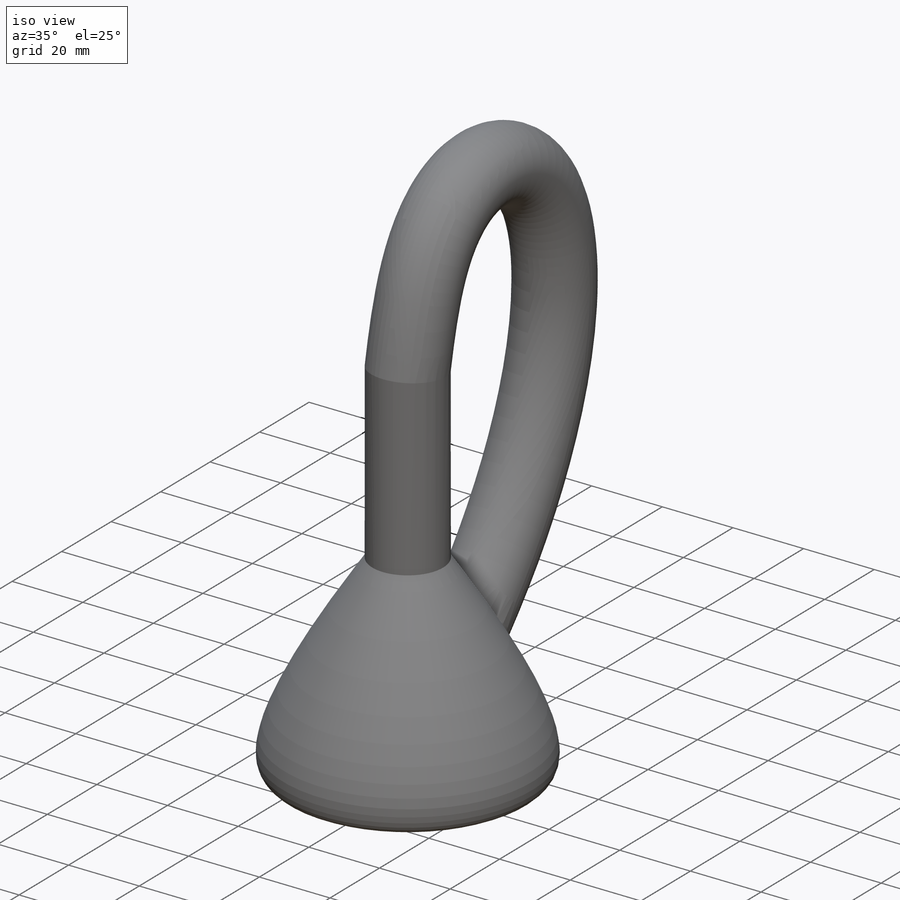
[diagram: iso view]
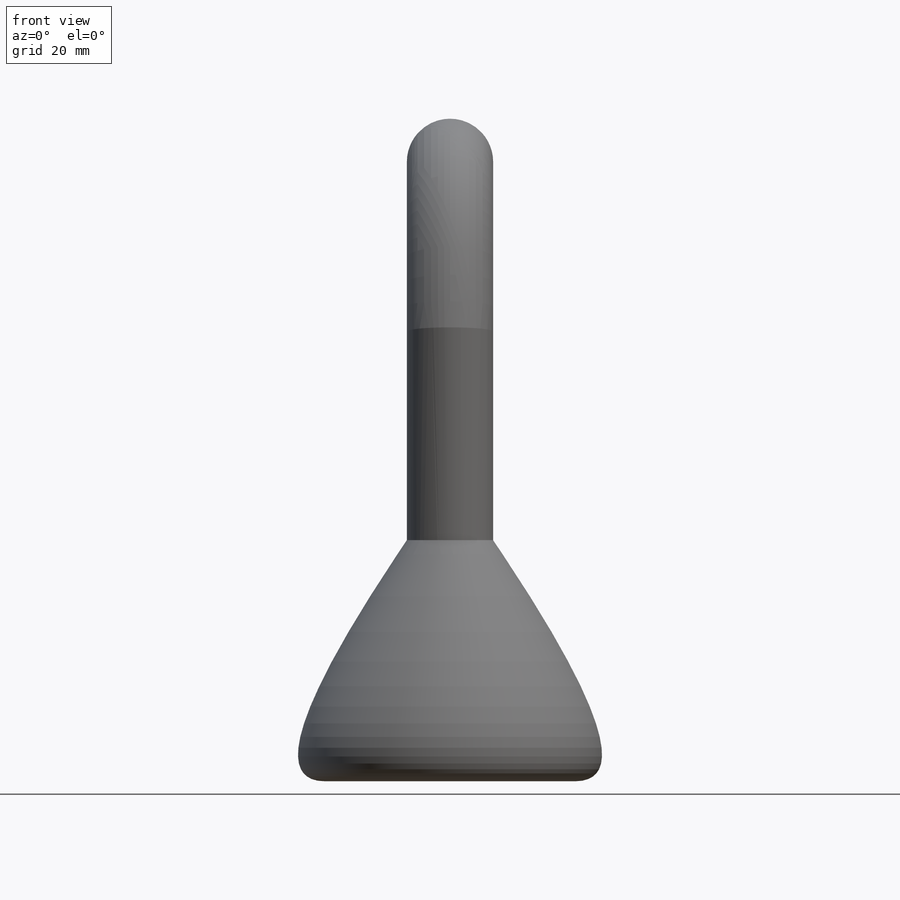
[diagram: front view]
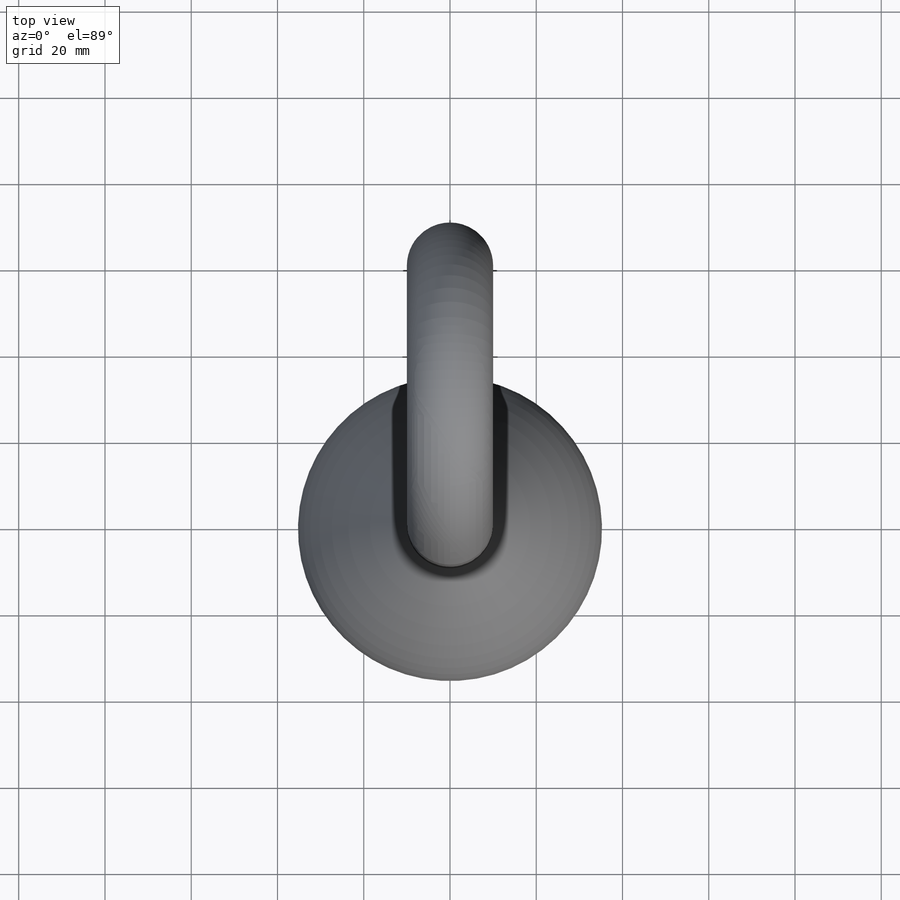
[diagram: top view]
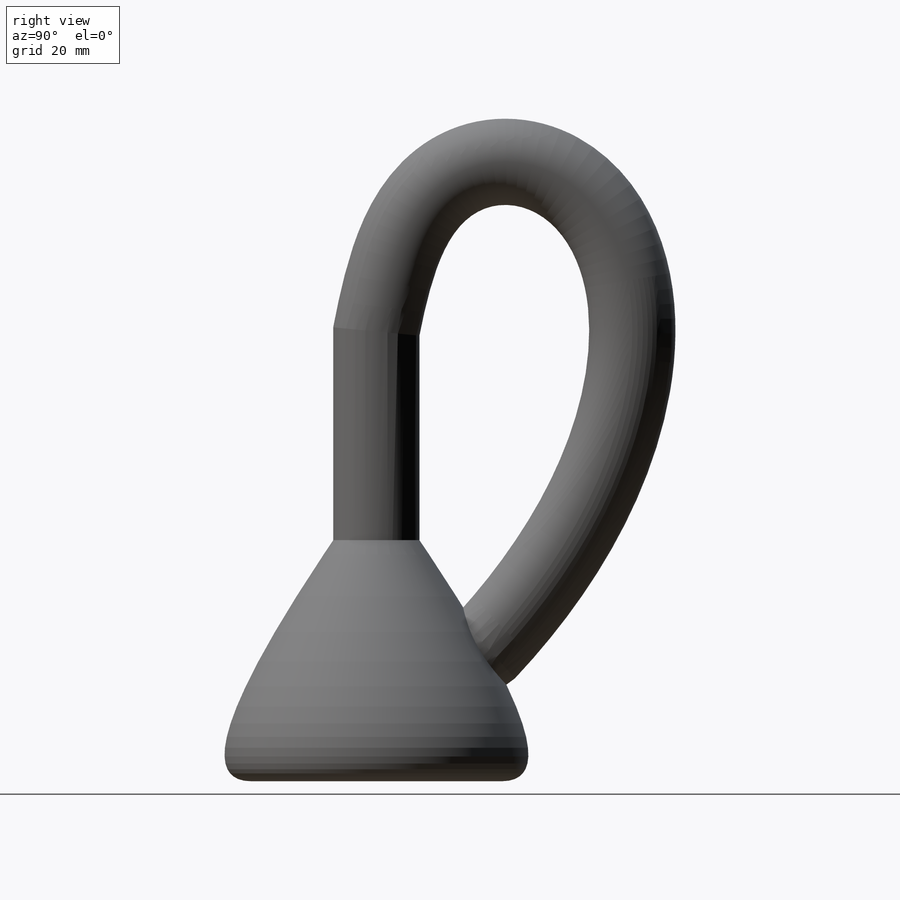
[diagram: right view]
SOLIDWORKS PART (.sldprt)
format: sldprt  version: not decoded by parser v0  size: 422,912 bytes
history: native  units: mm
features: sketch x6, plane x3, sweep x2, material x1, revolve x1, shell x1, cut_extrude x1 (+10 scaffold rows collapsed)
feature tree (25):
  scaffold x10  (default folders/planes/origin — collapsed)
  material  "Material <sin especificar>"
  plane  "Alzado"
  plane  "Planta"
  plane  "Vista lateral"
  sketch  "Croquis1"  dims[D1=10.0mm]
  revolve  "Revolución1"  Angle=360deg
  shell  "Vaciado2"  Thickness=2mm
  sketch  "Croquis14"  dims[D1=18.0mm]
  cut_extrude  "Cortar-Extruir3"  [1 undecoded]
  sketch  "Croquis18"  dims[D1=~31.623494mm]
  sketch  "Croquis19"  dims[D1=20.0mm]
  sweep  "Barrer23"
  sketch  "Croquis20"  dims[D1=18.0mm]
  sweep  "Cortar-Barrer7"
  sketch  "Croquis18<2>"
decode coverage: 7 of 11 modeling features carry decoded parameters
note: ~ marks probable driven/reference dimensions
note: 1 parameter value undecoded
note: suppression state not decoded; provenance and decode notes live in map.json
